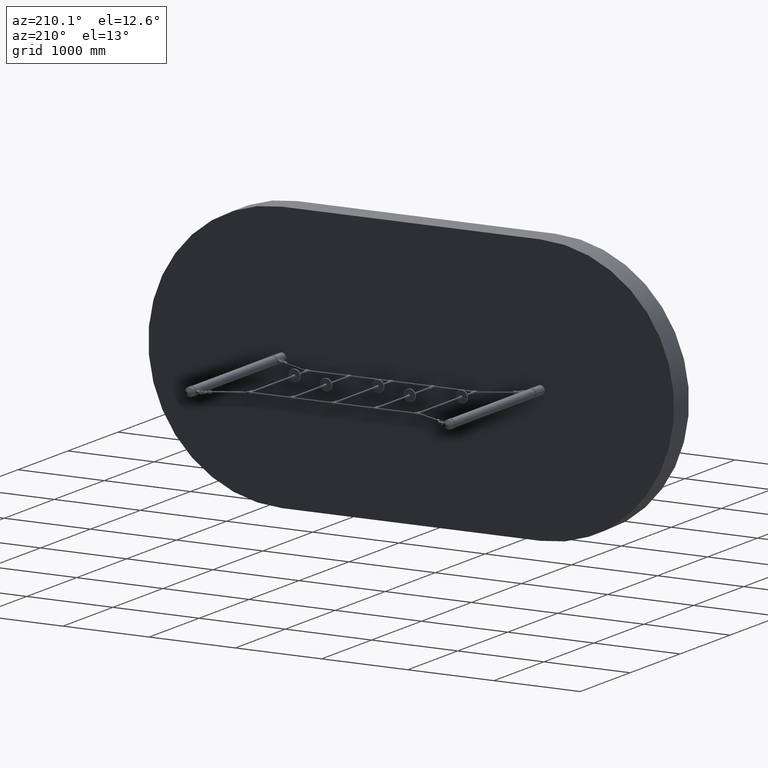
[diagram: clean part render]
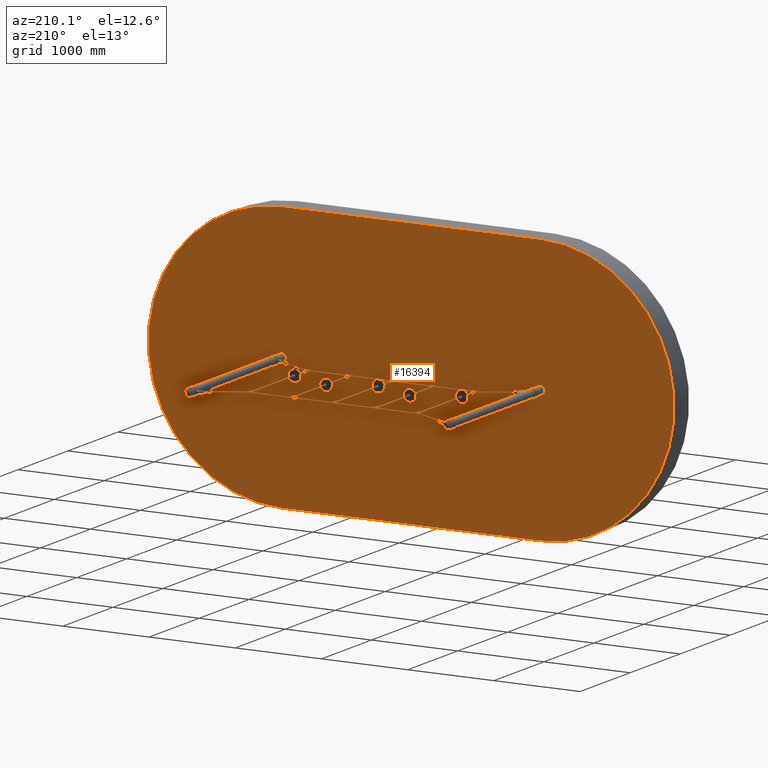
[diagram: same view with one face highlighted and labeled with its STEP entity id]
A machine part, auxiliary view. The second image highlights one B-rep face of the part: STEP entity #16394.
In plain terms, the highlighted planar face has unit normal (0, 1, 0).
Its self-contained STEP definition (entity closure, byte-faithful):
#601 = DIRECTION ( 'NONE',  ( 1.000000000000000000, 0.0000000000000000000, 0.0000000000000000000 ) ) ;
#788 = CARTESIAN_POINT ( 'NONE',  ( 0.0000000000000000000, 300.0000000000000000, 1550.000000000000000 ) ) ;
#919 = FACE_OUTER_BOUND ( 'NONE', #12019, .T. ) ;
#1333 = CARTESIAN_POINT ( 'NONE',  ( 3000.000000000000000, 300.0000000000000000, 51.00000000000007800 ) ) ;
#1394 = VERTEX_POINT ( 'NONE', #5064 ) ;
#2153 = ORIENTED_EDGE ( 'NONE', *, *, #3723, .F. ) ;
#2340 = AXIS2_PLACEMENT_3D ( 'NONE', #11949, #11887, #10988 ) ;
#2387 = ORIENTED_EDGE ( 'NONE', *, *, #3611, .F. ) ;
#2532 = AXIS2_PLACEMENT_3D ( 'NONE', #17561, #14921, #6595 ) ;
#2572 = AXIS2_PLACEMENT_3D ( 'NONE', #10823, #10756, #10394 ) ;
#2971 = ORIENTED_EDGE ( 'NONE', *, *, #3141, .F. ) ;
#3013 = AXIS2_PLACEMENT_3D ( 'NONE', #15777, #15379, #15324 ) ;
#3141 = EDGE_CURVE ( 'NONE', #18053, #7009, #6839, .T. ) ;
#3248 = EDGE_CURVE ( 'NONE', #3643, #13838, #15280, .T. ) ;
#3254 = AXIS2_PLACEMENT_3D ( 'NONE', #3711, #3651, #3584 ) ;
#3332 = EDGE_CURVE ( 'NONE', #1394, #16299, #14027, .T. ) ;
#3368 = AXIS2_PLACEMENT_3D ( 'NONE', #12591, #12537, #12481 ) ;
#3424 = EDGE_CURVE ( 'NONE', #16299, #7923, #6598, .T. ) ;
#3525 = EDGE_CURVE ( 'NONE', #7923, #6747, #11458, .T. ) ;
#3584 = DIRECTION ( 'NONE',  ( 0.0000000000000000000, 0.0000000000000000000, 1.000000000000000000 ) ) ;
#3606 = EDGE_CURVE ( 'NONE', #6747, #1394, #16543, .T. ) ;
#3611 = EDGE_CURVE ( 'NONE', #7009, #18053, #9238, .T. ) ;
#3643 = VERTEX_POINT ( 'NONE', #10332 ) ;
#3651 = DIRECTION ( 'NONE',  ( 0.0000000000000000000, 1.000000000000000000, 0.0000000000000000000 ) ) ;
#3676 = AXIS2_PLACEMENT_3D ( 'NONE', #13842, #14955, #17780 ) ;
#3711 = CARTESIAN_POINT ( 'NONE',  ( 0.0000000000000000000, 300.0000000000000000, 0.0000000000000000000 ) ) ;
#3723 = EDGE_CURVE ( 'NONE', #13838, #3643, #14845, .T. ) ;
#4123 = ORIENTED_EDGE ( 'NONE', *, *, #3332, .T. ) ;
#4708 = ORIENTED_EDGE ( 'NONE', *, *, #3424, .T. ) ;
#4777 = FACE_BOUND ( 'NONE', #7049, .T. ) ;
#5064 = CARTESIAN_POINT ( 'NONE',  ( 0.0000000000000000000, 300.0000000000000000, -1550.000000000000000 ) ) ;
#5942 = CARTESIAN_POINT ( 'NONE',  ( 3000.000000000000000, 300.0000000000000000, -1550.000000000000000 ) ) ;
#6595 = DIRECTION ( 'NONE',  ( 0.0000000000000000000, -0.0000000000000000000, 1.000000000000000000 ) ) ;
#6598 = LINE ( 'NONE', #788, #9017 ) ;
#6747 = VERTEX_POINT ( 'NONE', #5942 ) ;
#6839 = CIRCLE ( 'NONE', #3676, 51.00000000000007800 ) ;
#7009 = VERTEX_POINT ( 'NONE', #1333 ) ;
#7049 = EDGE_LOOP ( 'NONE', ( #2387, #2971 ) ) ;
#7752 = CARTESIAN_POINT ( 'NONE',  ( 0.0000000000000000000, 300.0000000000000000, 50.99999999999999300 ) ) ;
#7923 = VERTEX_POINT ( 'NONE', #9889 ) ;
#8568 = FACE_BOUND ( 'NONE', #13705, .T. ) ;
#9017 = VECTOR ( 'NONE', #601, 1000.000000000000000 ) ;
#9238 = CIRCLE ( 'NONE', #2572, 51.00000000000007800 ) ;
#9889 = CARTESIAN_POINT ( 'NONE',  ( 3000.000000000000000, 300.0000000000000000, 1550.000000000000000 ) ) ;
#10332 = CARTESIAN_POINT ( 'NONE',  ( 6.245698675651499700E-015, 300.0000000000000000, -50.99999999999999300 ) ) ;
#10394 = DIRECTION ( 'NONE',  ( 0.0000000000000000000, 0.0000000000000000000, 1.000000000000000000 ) ) ;
#10756 = DIRECTION ( 'NONE',  ( 0.0000000000000000000, 1.000000000000000000, 0.0000000000000000000 ) ) ;
#10797 = ORIENTED_EDGE ( 'NONE', *, *, #3606, .T. ) ;
#10823 = CARTESIAN_POINT ( 'NONE',  ( 3000.000000000000000, 300.0000000000000000, 0.0000000000000000000 ) ) ;
#10988 = DIRECTION ( 'NONE',  ( 0.0000000000000000000, 0.0000000000000000000, 1.000000000000000000 ) ) ;
#11351 = ORIENTED_EDGE ( 'NONE', *, *, #3248, .F. ) ;
#11458 = CIRCLE ( 'NONE', #3013, 1550.000000000000000 ) ;
#11887 = DIRECTION ( 'NONE',  ( 0.0000000000000000000, 1.000000000000000000, 0.0000000000000000000 ) ) ;
#11949 = CARTESIAN_POINT ( 'NONE',  ( 0.0000000000000000000, 300.0000000000000000, 0.0000000000000000000 ) ) ;
#12019 = EDGE_LOOP ( 'NONE', ( #4123, #4708, #15148, #10797 ) ) ;
#12088 = DIRECTION ( 'NONE',  ( -1.000000000000000000, -0.0000000000000000000, -0.0000000000000000000 ) ) ;
#12199 = PLANE ( 'NONE',  #2532 ) ;
#12340 = CARTESIAN_POINT ( 'NONE',  ( 0.0000000000000000000, 300.0000000000000000, -1550.000000000000000 ) ) ;
#12481 = DIRECTION ( 'NONE',  ( 0.0000000000000000000, 0.0000000000000000000, 1.000000000000000000 ) ) ;
#12537 = DIRECTION ( 'NONE',  ( 0.0000000000000000000, 1.000000000000000000, 0.0000000000000000000 ) ) ;
#12591 = CARTESIAN_POINT ( 'NONE',  ( 0.0000000000000000000, 300.0000000000000000, 0.0000000000000000000 ) ) ;
#12937 = VECTOR ( 'NONE', #12088, 1000.000000000000000 ) ;
#12991 = CARTESIAN_POINT ( 'NONE',  ( 3000.000000000000000, 300.0000000000000000, -51.00000000000007800 ) ) ;
#13705 = EDGE_LOOP ( 'NONE', ( #2153, #11351 ) ) ;
#13838 = VERTEX_POINT ( 'NONE', #7752 ) ;
#13842 = CARTESIAN_POINT ( 'NONE',  ( 3000.000000000000000, 300.0000000000000000, 0.0000000000000000000 ) ) ;
#14027 = CIRCLE ( 'NONE', #3254, 1550.000000000000000 ) ;
#14845 = CIRCLE ( 'NONE', #2340, 50.99999999999999300 ) ;
#14921 = DIRECTION ( 'NONE',  ( 0.0000000000000000000, 1.000000000000000000, 0.0000000000000000000 ) ) ;
#14955 = DIRECTION ( 'NONE',  ( 0.0000000000000000000, 1.000000000000000000, 0.0000000000000000000 ) ) ;
#15148 = ORIENTED_EDGE ( 'NONE', *, *, #3525, .T. ) ;
#15280 = CIRCLE ( 'NONE', #3368, 50.99999999999999300 ) ;
#15324 = DIRECTION ( 'NONE',  ( 0.0000000000000000000, 0.0000000000000000000, 1.000000000000000000 ) ) ;
#15379 = DIRECTION ( 'NONE',  ( 0.0000000000000000000, 1.000000000000000000, 0.0000000000000000000 ) ) ;
#15777 = CARTESIAN_POINT ( 'NONE',  ( 3000.000000000000000, 300.0000000000000000, 0.0000000000000000000 ) ) ;
#16016 = CARTESIAN_POINT ( 'NONE',  ( 0.0000000000000000000, 300.0000000000000000, 1550.000000000000000 ) ) ;
#16299 = VERTEX_POINT ( 'NONE', #16016 ) ;
#16394 = ADVANCED_FACE ( 'NONE', ( #4777, #8568, #919 ), #12199, .T. ) ;
#16543 = LINE ( 'NONE', #12340, #12937 ) ;
#17561 = CARTESIAN_POINT ( 'NONE',  ( 0.0000000000000000000, 300.0000000000000000, 0.0000000000000000000 ) ) ;
#17780 = DIRECTION ( 'NONE',  ( 0.0000000000000000000, 0.0000000000000000000, 1.000000000000000000 ) ) ;
#18053 = VERTEX_POINT ( 'NONE', #12991 ) ;